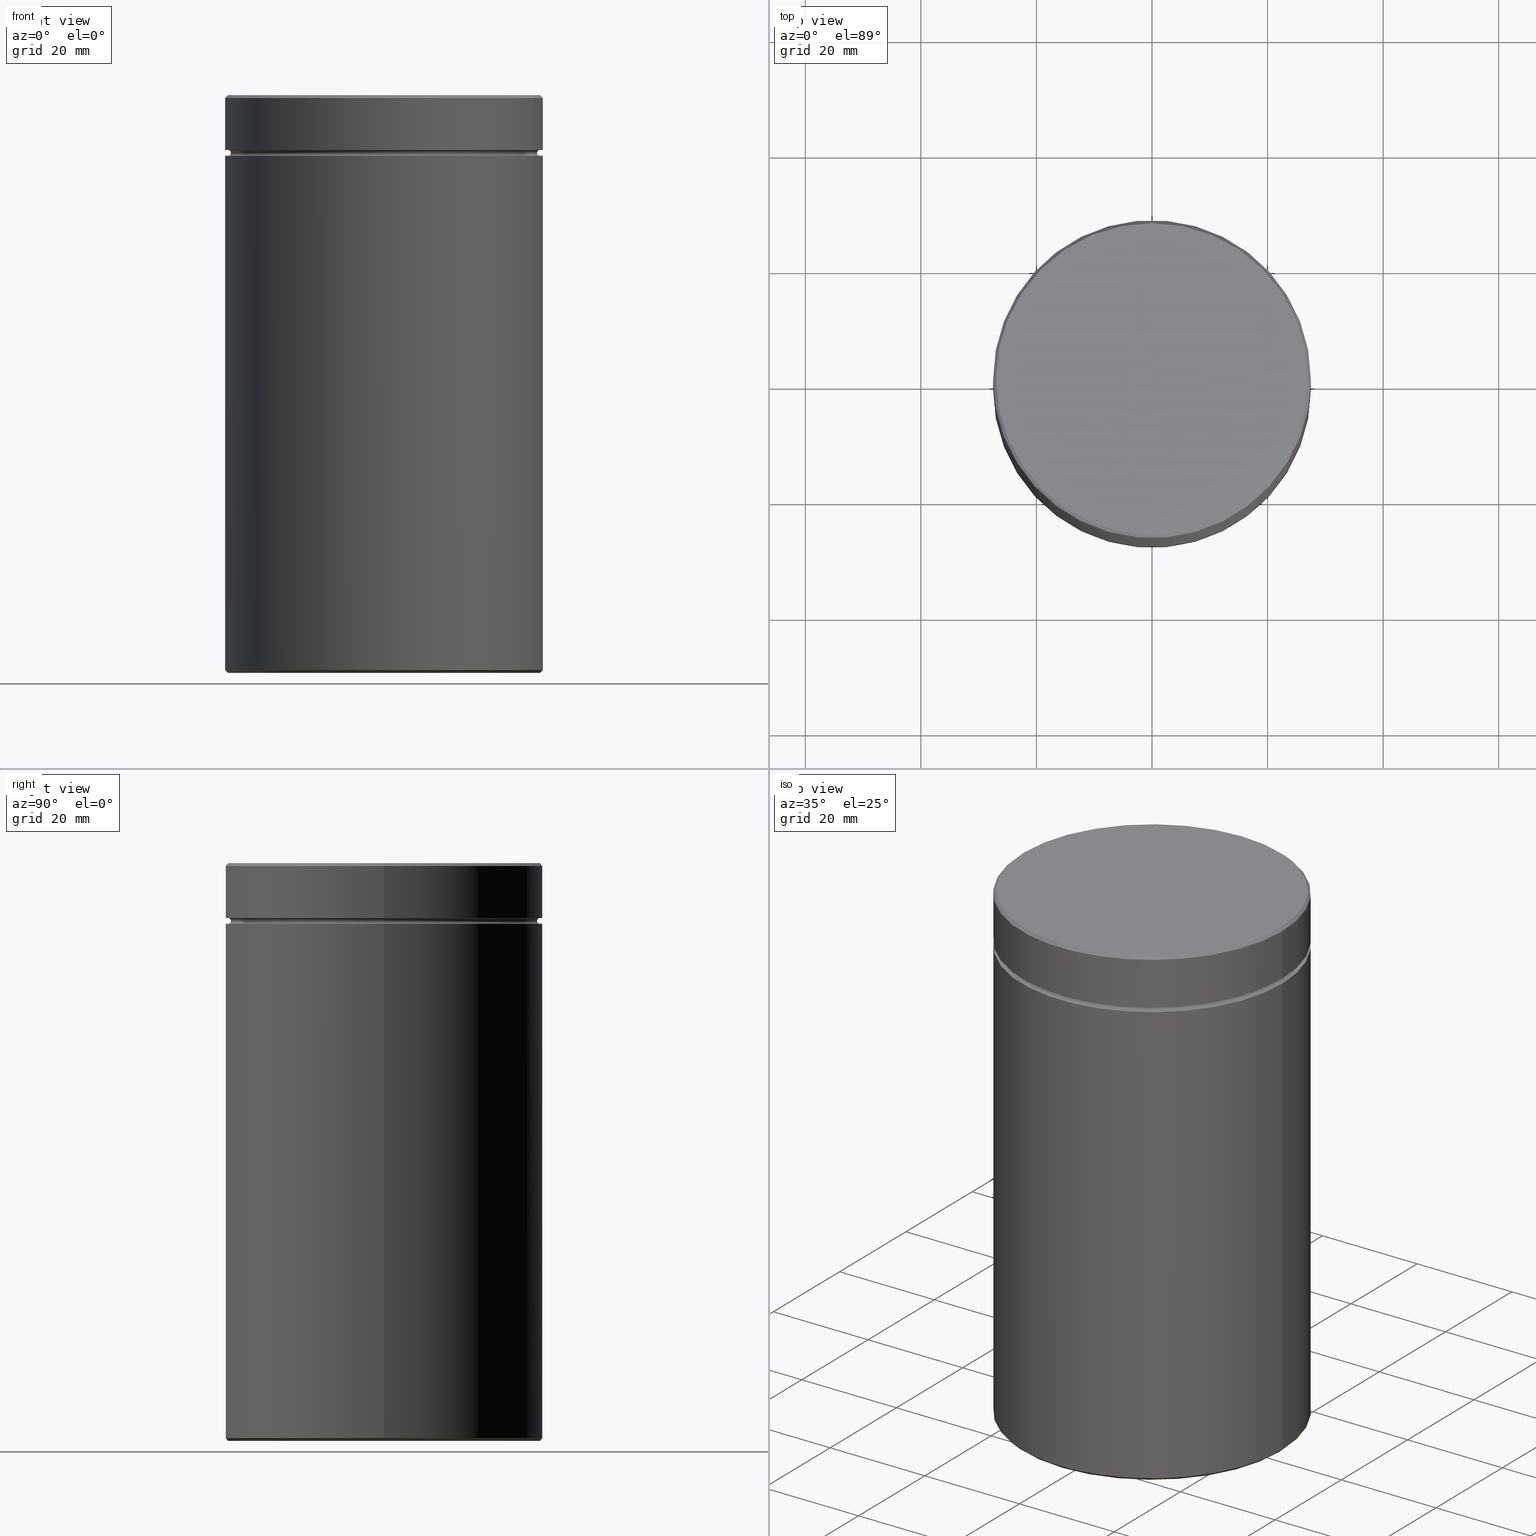
[diagram: canonical four-view strip — front | top / right | iso, engineering-drawing reading convention]
A machine part, canonical four-view strip (front | top / right | iso — engineering-drawing reading convention). The complete STEP part file that produces these views, byte-faithful:
ISO-10303-21;
HEADER;
FILE_DESCRIPTION (( 'STEP AP203' ),
    '1' );
FILE_NAME ('d21d.STEP',
    '2024-01-08T12:14:24',
    ( '' ),
    ( '' ),
    'SwSTEP 2.0',
    'SolidWorks 2019',
    '' );
FILE_SCHEMA (( 'CONFIG_CONTROL_DESIGN' ));
ENDSEC;

DATA;
#1 = DIRECTION ( 'NONE',  ( -1.000000000000000000, 0.000000000000000000, 0.000000000000000000 ) ) ;
#2 = AXIS2_PLACEMENT_3D ( 'NONE', #419, #155, #559 ) ;
#3 = VECTOR ( 'NONE', #146, 1000.000000000000000 ) ;
#4 = CC_DESIGN_DATE_AND_TIME_ASSIGNMENT ( #514, #160, ( #305 ) ) ;
#5 = LINE ( 'NONE', #13, #182 ) ;
#6 = CARTESIAN_POINT ( 'NONE',  ( -20.00000000000000000, 0.000000000000000000, -29.00000000000001066 ) ) ;
#7 = CC_DESIGN_DATE_AND_TIME_ASSIGNMENT ( #473, #37, ( #349 ) ) ;
#8 = DIRECTION ( 'NONE',  ( -0.000000000000000000, -0.000000000000000000, 1.000000000000000000 ) ) ;
#9 = CONICAL_SURFACE ( 'NONE', #327, 26.99999999999997868, 0.7853981633974552734 ) ;
#10 = DIRECTION ( 'NONE',  ( -1.000000000000000000, 0.000000000000000000, 0.000000000000000000 ) ) ;
#11 = DIRECTION ( 'NONE',  ( 0.000000000000000000, 0.000000000000000000, -1.000000000000000000 ) ) ;
#12 = EDGE_CURVE ( 'NONE', #377, #303, #392, .T. ) ;
#13 = CARTESIAN_POINT ( 'NONE',  ( 20.00000000000000000, 2.449293598294706513E-15, -29.00000000000001066 ) ) ;
#14 = ORIENTED_EDGE ( 'NONE', *, *, #314, .T. ) ;
#15 = CARTESIAN_POINT ( 'NONE',  ( -20.00000000000000000, 0.000000000000000000, -100.0000000000000000 ) ) ;
#16 = VERTEX_POINT ( 'NONE', #397 ) ;
#17 = CARTESIAN_POINT ( 'NONE',  ( 27.00000000000000000, 0.000000000000000000, -10.00000000000000178 ) ) ;
#18 = CARTESIAN_POINT ( 'NONE',  ( -26.99999999999996803, 3.337162527676535548E-15, -100.0000000000000000 ) ) ;
#19 = AXIS2_PLACEMENT_3D ( 'NONE', #184, #353, #485 ) ;
#20 = AXIS2_PLACEMENT_3D ( 'NONE', #496, #96, #493 ) ;
#21 = DIRECTION ( 'NONE',  ( 0.000000000000000000, -0.000000000000000000, 1.000000000000000000 ) ) ;
#22 = ADVANCED_FACE ( 'NONE', ( #497, #58 ), #95, .T. ) ;
#23 = APPROVAL_STATUS ( 'not_yet_approved' ) ;
#24 = LINE ( 'NONE', #410, #296 ) ;
#25 = ORIENTED_EDGE ( 'NONE', *, *, #108, .F. ) ;
#26 = FACE_OUTER_BOUND ( 'NONE', #147, .T. ) ;
#27 = CALENDAR_DATE ( 2024, 8, 1 ) ;
#28 = EDGE_LOOP ( 'NONE', ( #124, #298, #87, #523 ) ) ;
#29 = CIRCLE ( 'NONE', #130, 0.5000000000000004441 ) ;
#30 = EDGE_CURVE ( 'NONE', #175, #280, #129, .T. ) ;
#31 = ORIENTED_EDGE ( 'NONE', *, *, #461, .T. ) ;
#32 = SECURITY_CLASSIFICATION_LEVEL ( 'unclassified' ) ;
#33 = ORIENTED_EDGE ( 'NONE', *, *, #135, .F. ) ;
#34 = DIRECTION ( 'NONE',  ( -1.000000000000000000, 0.000000000000000000, -0.000000000000000000 ) ) ;
#35 = TOROIDAL_SURFACE ( 'NONE', #348, 27.00000000000000000, 0.5000000000000000000 ) ;
#36 = CARTESIAN_POINT ( 'NONE',  ( -27.00000000000000000, 3.306546357697854128E-15, -10.50000000000000178 ) ) ;
#37 = DATE_TIME_ROLE ( 'classification_date' ) ;
#38 = VERTEX_POINT ( 'NONE', #535 ) ;
#39 = EDGE_CURVE ( 'NONE', #189, #341, #311, .T. ) ;
#40 = CARTESIAN_POINT ( 'NONE',  ( 0.000000000000000000, 0.000000000000000000, -0.5000000000000143219 ) ) ;
#41 = ORIENTED_EDGE ( 'NONE', *, *, #188, .F. ) ;
#42 = CARTESIAN_POINT ( 'NONE',  ( 0.000000000000000000, 0.000000000000000000, -100.0000000000000000 ) ) ;
#43 = ORIENTED_EDGE ( 'NONE', *, *, #428, .F. ) ;
#44 = ADVANCED_FACE ( 'NONE', ( #491 ), #60, .T. ) ;
#45 = VECTOR ( 'NONE', #378, 1000.000000000000000 ) ;
#46 = ORIENTED_EDGE ( 'NONE', *, *, #152, .T. ) ;
#47 = AXIS2_PLACEMENT_3D ( 'NONE', #185, #450, #181 ) ;
#48 = VERTEX_POINT ( 'NONE', #183 ) ;
#49 = VERTEX_POINT ( 'NONE', #352 ) ;
#50 = ADVANCED_FACE ( 'NONE', ( #539 ), #248, .F. ) ;
#51 = CARTESIAN_POINT ( 'NONE',  ( -27.50000000000000000, 3.367778697655221307E-15, -99.49999999999995737 ) ) ;
#52 = DIRECTION ( 'NONE',  ( 0.000000000000000000, 0.000000000000000000, -1.000000000000000000 ) ) ;
#53 = CIRCLE ( 'NONE', #233, 26.99999999999997868 ) ;
#54 = ORIENTED_EDGE ( 'NONE', *, *, #517, .T. ) ;
#55 = DIRECTION ( 'NONE',  ( 1.000000000000000000, 0.000000000000000000, 0.000000000000000000 ) ) ;
#56 = VECTOR ( 'NONE', #455, 1000.000000000000000 ) ;
#57 = CARTESIAN_POINT ( 'NONE',  ( 0.000000000000000000, 0.000000000000000000, -99.49999999999995737 ) ) ;
#58 = FACE_BOUND ( 'NONE', #167, .T. ) ;
#59 = CARTESIAN_POINT ( 'NONE',  ( 27.50000000000000000, 0.000000000000000000, 0.000000000000000000 ) ) ;
#60 = CONICAL_SURFACE ( 'NONE', #358, 26.99999999999997868, 0.7853981633974552734 ) ;
#61 = DIRECTION ( 'NONE',  ( 1.000000000000000000, 0.000000000000000000, 0.000000000000000000 ) ) ;
#62 = CARTESIAN_POINT ( 'NONE',  ( 0.000000000000000000, 0.000000000000000000, 0.000000000000000000 ) ) ;
#63 = ADVANCED_FACE ( 'NONE', ( #364 ), #196, .F. ) ;
#64 = CARTESIAN_POINT ( 'NONE',  ( 0.000000000000000000, 0.000000000000000000, 0.000000000000000000 ) ) ;
#65 = CIRCLE ( 'NONE', #125, 26.99999999999996803 ) ;
#66 = EDGE_LOOP ( 'NONE', ( #405, #133 ) ) ;
#67 = VECTOR ( 'NONE', #8, 1000.000000000000000 ) ;
#68 = FACE_OUTER_BOUND ( 'NONE', #157, .T. ) ;
#69 = CARTESIAN_POINT ( 'NONE',  ( 0.000000000000000000, 0.000000000000000000, -29.00000000000001066 ) ) ;
#70 = AXIS2_PLACEMENT_3D ( 'NONE', #505, #374, #502 ) ;
#71 = ADVANCED_FACE ( 'NONE', ( #278 ), #234, .F. ) ;
#72 = DIRECTION ( 'NONE',  ( -0.000000000000000000, -0.000000000000000000, 1.000000000000000000 ) ) ;
#73 = APPROVAL_DATE_TIME ( #247, #494 ) ;
#74 = EDGE_LOOP ( 'NONE', ( #334, #470, #414, #114 ) ) ;
#75 = PERSON_AND_ORGANIZATION_ROLE ( 'creator' ) ;
#76 = CARTESIAN_POINT ( 'NONE',  ( 0.000000000000000000, 0.000000000000000000, -9.500000000000000000 ) ) ;
#77 = CALENDAR_DATE ( 2024, 8, 1 ) ;
#78 = CARTESIAN_POINT ( 'NONE',  ( -27.00000000000000000, 0.000000000000000000, -9.499999999999998224 ) ) ;
#79 = ADVANCED_FACE ( 'NONE', ( #370, #287 ), #557, .T. ) ;
#80 = PERSON_AND_ORGANIZATION ( #151, #82 ) ;
#81 = ORIENTED_EDGE ( 'NONE', *, *, #118, .T. ) ;
#82 = ORGANIZATION ( 'NEUR�EN�', 'NEUR�EN�', '' ) ;
#83 = CARTESIAN_POINT ( 'NONE',  ( 0.000000000000000000, 0.000000000000000000, -10.00000000000000178 ) ) ;
#84 = LOCAL_TIME ( 13, 14, 24.00000000000000000, #421 ) ;
#85 = EDGE_LOOP ( 'NONE', ( #236, #515, #546, #117 ) ) ;
#86 = DIRECTION ( 'NONE',  ( -0.000000000000000000, -0.000000000000000000, 1.000000000000000000 ) ) ;
#87 = ORIENTED_EDGE ( 'NONE', *, *, #336, .T. ) ;
#88 = EDGE_CURVE ( 'NONE', #38, #377, #123, .T. ) ;
#89 = EDGE_LOOP ( 'NONE', ( #218, #503 ) ) ;
#90 = CARTESIAN_POINT ( 'NONE',  ( 27.50000000000000000, 0.000000000000000000, -99.49999999999995737 ) ) ;
#91 = DIRECTION ( 'NONE',  ( 1.000000000000000000, 0.000000000000000000, 0.000000000000000000 ) ) ;
#92 = CARTESIAN_POINT ( 'NONE',  ( 0.000000000000000000, 0.000000000000000000, 0.000000000000000000 ) ) ;
#93 = DIRECTION ( 'NONE',  ( -0.000000000000000000, -0.000000000000000000, 1.000000000000000000 ) ) ;
#94 = DIRECTION ( 'NONE',  ( -0.000000000000000000, -0.000000000000000000, 1.000000000000000000 ) ) ;
#95 = PLANE ( 'NONE',  #266 ) ;
#96 = DIRECTION ( 'NONE',  ( -0.000000000000000000, -0.000000000000000000, 1.000000000000000000 ) ) ;
#97 = TOROIDAL_SURFACE ( 'NONE', #332, 27.00000000000000000, 0.5000000000000000000 ) ;
#98 = FACE_BOUND ( 'NONE', #89, .T. ) ;
#99 = ORIENTED_EDGE ( 'NONE', *, *, #418, .T. ) ;
#100 = CC_DESIGN_PERSON_AND_ORGANIZATION_ASSIGNMENT ( #80, #75, ( #305 ) ) ;
#101 = CYLINDRICAL_SURFACE ( 'NONE', #309, 27.50000000000000000 ) ;
#102 = DIRECTION ( 'NONE',  ( -0.000000000000000000, -0.000000000000000000, -1.000000000000000000 ) ) ;
#103 = PERSON_AND_ORGANIZATION ( #151, #82 ) ;
#104 = EDGE_LOOP ( 'NONE', ( #474, #14 ) ) ;
#105 = DIRECTION ( 'NONE',  ( -0.000000000000000000, -0.000000000000000000, 1.000000000000000000 ) ) ;
#106 = AXIS2_PLACEMENT_3D ( 'NONE', #265, #563, #335 ) ;
#107 = DIRECTION ( 'NONE',  ( 0.000000000000000000, 0.000000000000000000, -1.000000000000000000 ) ) ;
#108 = EDGE_CURVE ( 'NONE', #16, #280, #24, .T. ) ;
#109 = CARTESIAN_POINT ( 'NONE',  ( 27.50000000000000000, 0.000000000000000000, 0.000000000000000000 ) ) ;
#110 = ORIENTED_EDGE ( 'NONE', *, *, #471, .F. ) ;
#111 = CARTESIAN_POINT ( 'NONE',  ( 20.00000000000000000, 2.449293598294706513E-15, -100.0000000000000000 ) ) ;
#112 = CARTESIAN_POINT ( 'NONE',  ( 0.000000000000000000, 0.000000000000000000, -99.49999999999995737 ) ) ;
#113 = COORDINATED_UNIVERSAL_TIME_OFFSET ( 1, 0, .AHEAD. ) ;
#114 = ORIENTED_EDGE ( 'NONE', *, *, #244, .F. ) ;
#115 = PERSON_AND_ORGANIZATION_ROLE ( 'classification_officer' ) ;
#116 = LOCAL_TIME ( 13, 14, 24.00000000000000000, #252 ) ;
#117 = ORIENTED_EDGE ( 'NONE', *, *, #12, .F. ) ;
#118 = EDGE_CURVE ( 'NONE', #377, #38, #344, .T. ) ;
#119 = DIRECTION ( 'NONE',  ( -0.000000000000000000, -0.000000000000000000, 1.000000000000000000 ) ) ;
#120 = PERSON_AND_ORGANIZATION_ROLE ( 'creator' ) ;
#121 = ORIENTED_EDGE ( 'NONE', *, *, #269, .T. ) ;
#122 = DIRECTION ( 'NONE',  ( -0.000000000000000000, -0.000000000000000000, 1.000000000000000000 ) ) ;
#123 = CIRCLE ( 'NONE', #277, 20.00000000000000000 ) ;
#124 = ORIENTED_EDGE ( 'NONE', *, *, #517, .F. ) ;
#125 = AXIS2_PLACEMENT_3D ( 'NONE', #398, #11, #480 ) ;
#126 = DIRECTION ( 'NONE',  ( -0.000000000000000000, -0.000000000000000000, 1.000000000000000000 ) ) ;
#127 = ADVANCED_FACE ( 'NONE', ( #464 ), #324, .T. ) ;
#128 = EDGE_LOOP ( 'NONE', ( #286, #483, #319, #140 ) ) ;
#129 = LINE ( 'NONE', #487, #304 ) ;
#130 = AXIS2_PLACEMENT_3D ( 'NONE', #297, #255, #386 ) ;
#131 = CARTESIAN_POINT ( 'NONE',  ( 0.000000000000000000, 0.000000000000000000, -10.50000000000000000 ) ) ;
#132 = CC_DESIGN_SECURITY_CLASSIFICATION ( #349, ( #192 ) ) ;
#133 = ORIENTED_EDGE ( 'NONE', *, *, #342, .T. ) ;
#134 = DIRECTION ( 'NONE',  ( 1.000000000000000000, 0.000000000000000000, 0.000000000000000000 ) ) ;
#135 = EDGE_CURVE ( 'NONE', #360, #259, #401, .T. ) ;
#136 = CARTESIAN_POINT ( 'NONE',  ( 0.000000000000000000, 0.000000000000000000, -100.0000000000000000 ) ) ;
#137 = DIRECTION ( 'NONE',  ( -0.000000000000000000, -0.000000000000000000, 1.000000000000000000 ) ) ;
#138 = DIRECTION ( 'NONE',  ( 0.000000000000000000, 0.000000000000000000, -1.000000000000000000 ) ) ;
#139 = DIRECTION ( 'NONE',  ( -0.000000000000000000, -0.000000000000000000, 1.000000000000000000 ) ) ;
#140 = ORIENTED_EDGE ( 'NONE', *, *, #471, .T. ) ;
#141 = FACE_OUTER_BOUND ( 'NONE', #288, .T. ) ;
#142 = PLANE ( 'NONE',  #284 ) ;
#143 = CONICAL_SURFACE ( 'NONE', #19, 27.50000000000000000, 0.7853981633974378429 ) ;
#144 = ORIENTED_EDGE ( 'NONE', *, *, #489, .T. ) ;
#145 = ADVANCED_FACE ( 'NONE', ( #68 ), #456, .T. ) ;
#146 = DIRECTION ( 'NONE',  ( -0.000000000000000000, -0.000000000000000000, 1.000000000000000000 ) ) ;
#147 = EDGE_LOOP ( 'NONE', ( #150, #317, #198, #558 ) ) ;
#148 = DIRECTION ( 'NONE',  ( -1.000000000000000000, 0.000000000000000000, 0.000000000000000000 ) ) ;
#149 = CARTESIAN_POINT ( 'NONE',  ( 0.000000000000000000, 0.000000000000000000, 0.000000000000000000 ) ) ;
#150 = ORIENTED_EDGE ( 'NONE', *, *, #366, .F. ) ;
#151 = PERSON ( 'NEUR�EN�', 'NEUR�EN�', 'NEUR�EN�', ('NEUR�EN�'), ('NEUR�EN�'), ('NEUR�EN�') ) ;
#152 = EDGE_CURVE ( 'NONE', #341, #262, #549, .T. ) ;
#153 = VERTEX_POINT ( 'NONE', #18 ) ;
#154 = CIRCLE ( 'NONE', #211, 27.50000000000000000 ) ;
#155 = DIRECTION ( 'NONE',  ( -0.000000000000000000, -1.000000000000000000, -0.000000000000000000 ) ) ;
#156 = CARTESIAN_POINT ( 'NONE',  ( 0.000000000000000000, 0.000000000000000000, 0.000000000000000000 ) ) ;
#157 = EDGE_LOOP ( 'NONE', ( #46, #31, #43, #264 ) ) ;
#158 = PRODUCT_DEFINITION_SHAPE ( 'NONE', 'NONE',  #305 ) ;
#159 = EDGE_LOOP ( 'NONE', ( #387, #556, #435, #268 ) ) ;
#160 = DATE_TIME_ROLE ( 'creation_date' ) ;
#161 = VERTEX_POINT ( 'NONE', #555 ) ;
#162 = EDGE_CURVE ( 'NONE', #201, #161, #193, .T. ) ;
#163 = AXIS2_PLACEMENT_3D ( 'NONE', #76, #245, #427 ) ;
#164 = CARTESIAN_POINT ( 'NONE',  ( -20.00000000000000000, 0.000000000000000000, -29.00000000000001066 ) ) ;
#165 = VERTEX_POINT ( 'NONE', #321 ) ;
#166 = CARTESIAN_POINT ( 'NONE',  ( 0.000000000000000000, 0.000000000000000000, -10.50000000000000178 ) ) ;
#167 = EDGE_LOOP ( 'NONE', ( #110, #41 ) ) ;
#168 = CARTESIAN_POINT ( 'NONE',  ( 0.000000000000000000, 0.000000000000000000, -9.499999999999998224 ) ) ;
#169 = ADVANCED_FACE ( 'NONE', ( #26 ), #460, .T. ) ;
#170 = ORIENTED_EDGE ( 'NONE', *, *, #482, .T. ) ;
#171 = AXIS2_PLACEMENT_3D ( 'NONE', #448, #499, #367 ) ;
#172 = DIRECTION ( 'NONE',  ( 1.000000000000000000, 0.000000000000000000, 0.000000000000000000 ) ) ;
#173 = AXIS2_PLACEMENT_3D ( 'NONE', #112, #551, #290 ) ;
#174 = PRODUCT_RELATED_PRODUCT_CATEGORY ( 'detail', '', ( #246 ) ) ;
#175 = VERTEX_POINT ( 'NONE', #351 ) ;
#176 = DIRECTION ( 'NONE',  ( 0.000000000000000000, 0.000000000000000000, -1.000000000000000000 ) ) ;
#177 = CARTESIAN_POINT ( 'NONE',  ( 26.99999999999997868, 3.306546357697850972E-15, 0.000000000000000000 ) ) ;
#178 = CARTESIAN_POINT ( 'NONE',  ( 0.000000000000000000, 27.50000000000000000, -100.0000000000000000 ) ) ;
#179 = ADVANCED_FACE ( 'NONE', ( #230 ), #484, .F. ) ;
#180 = AXIS2_PLACEMENT_3D ( 'NONE', #526, #86, #536 ) ;
#181 = DIRECTION ( 'NONE',  ( 1.000000000000000000, 0.000000000000000000, 0.000000000000000000 ) ) ;
#182 = VECTOR ( 'NONE', #345, 1000.000000000000000 ) ;
#183 = CARTESIAN_POINT ( 'NONE',  ( 27.00000000000000000, 0.000000000000000000, -10.50000000000000178 ) ) ;
#184 = CARTESIAN_POINT ( 'NONE',  ( 0.000000000000000000, 0.000000000000000000, -99.49999999999995737 ) ) ;
#185 = CARTESIAN_POINT ( 'NONE',  ( 0.000000000000000000, 0.000000000000000000, -99.49999999999995737 ) ) ;
#186 = ORIENTED_EDGE ( 'NONE', *, *, #88, .T. ) ;
#187 = DIRECTION ( 'NONE',  ( 1.000000000000000000, 0.000000000000000000, 0.000000000000000000 ) ) ;
#188 = EDGE_CURVE ( 'NONE', #338, #303, #194, .T. ) ;
#189 = VERTEX_POINT ( 'NONE', #273 ) ;
#190 = DIRECTION ( 'NONE',  ( 0.000000000000000000, 0.000000000000000000, -1.000000000000000000 ) ) ;
#191 = FACE_OUTER_BOUND ( 'NONE', #159, .T. ) ;
#192 = PRODUCT_DEFINITION_FORMATION_WITH_SPECIFIED_SOURCE ( 'LIBOVOLN�', '', #246, .NOT_KNOWN. ) ;
#193 = LINE ( 'NONE', #109, #3 ) ;
#194 = CIRCLE ( 'NONE', #519, 20.00000000000000000 ) ;
#195 = CIRCLE ( 'NONE', #423, 27.50000000000000000 ) ;
#196 = CYLINDRICAL_SURFACE ( 'NONE', #525, 20.00000000000000000 ) ;
#197 = PERSON_AND_ORGANIZATION ( #151, #82 ) ;
#198 = ORIENTED_EDGE ( 'NONE', *, *, #152, .F. ) ;
#199 = AXIS2_PLACEMENT_3D ( 'NONE', #69, #412, #328 ) ;
#200 = DIRECTION ( 'NONE',  ( -1.000000000000000000, 0.000000000000000000, 0.000000000000000000 ) ) ;
#201 = VERTEX_POINT ( 'NONE', #313 ) ;
#202 = CIRCLE ( 'NONE', #106, 27.50000000000000000 ) ;
#203 = DATE_AND_TIME ( #27, #481 ) ;
#204 = ORIENTED_EDGE ( 'NONE', *, *, #554, .T. ) ;
#205 = PERSON_AND_ORGANIZATION ( #151, #82 ) ;
#206 = ORIENTED_EDGE ( 'NONE', *, *, #30, .F. ) ;
#207 = APPROVAL ( #23, 'NEUR�EN�' ) ;
#208 = DIRECTION ( 'NONE',  ( 1.000000000000000000, 0.000000000000000000, 0.000000000000000000 ) ) ;
#209 = APPROVAL_STATUS ( 'not_yet_approved' ) ;
#210 = CIRCLE ( 'NONE', #373, 27.00000000000000000 ) ;
#211 = AXIS2_PLACEMENT_3D ( 'NONE', #57, #94, #407 ) ;
#212 = DIRECTION ( 'NONE',  ( 1.000000000000000000, 0.000000000000000000, 0.000000000000000000 ) ) ;
#213 = EDGE_CURVE ( 'NONE', #16, #49, #260, .T. ) ;
#214 = CARTESIAN_POINT ( 'NONE',  ( 0.000000000000000000, 0.000000000000000000, 0.000000000000000000 ) ) ;
#215 = DESIGN_CONTEXT ( 'detailed design', #229, 'design' ) ;
#216 = DIRECTION ( 'NONE',  ( 0.000000000000000000, 0.000000000000000000, -1.000000000000000000 ) ) ;
#217 = AXIS2_PLACEMENT_3D ( 'NONE', #569, #325, #55 ) ;
#218 = ORIENTED_EDGE ( 'NONE', *, *, #135, .T. ) ;
#219 = ADVANCED_FACE ( 'NONE', ( #191 ), #101, .T. ) ;
#220 = DIRECTION ( 'NONE',  ( 0.7071067811865401342, 0.000000000000000000, 0.7071067811865549002 ) ) ;
#221 = DIRECTION ( 'NONE',  ( 0.000000000000000000, 0.000000000000000000, -1.000000000000000000 ) ) ;
#222 = CARTESIAN_POINT ( 'NONE',  ( 0.000000000000000000, 0.000000000000000000, -0.5000000000000143219 ) ) ;
#223 = AXIS2_PLACEMENT_3D ( 'NONE', #149, #544, #232 ) ;
#224 = FACE_OUTER_BOUND ( 'NONE', #28, .T. ) ;
#225 = AXIS2_PLACEMENT_3D ( 'NONE', #17, #545, #541 ) ;
#226 = ORIENTED_EDGE ( 'NONE', *, *, #213, .F. ) ;
#227 = EDGE_CURVE ( 'NONE', #38, #338, #5, .T. ) ;
#228 = VERTEX_POINT ( 'NONE', #452 ) ;
#229 = APPLICATION_CONTEXT ( 'configuration controlled 3d designs of mechanical parts and assemblies' ) ;
#230 = FACE_OUTER_BOUND ( 'NONE', #369, .T. ) ;
#231 = CARTESIAN_POINT ( 'NONE',  ( 0.000000000000000000, 0.000000000000000000, -29.00000000000001066 ) ) ;
#232 = DIRECTION ( 'NONE',  ( 1.000000000000000000, 0.000000000000000000, 0.000000000000000000 ) ) ;
#233 = AXIS2_PLACEMENT_3D ( 'NONE', #522, #93, #208 ) ;
#234 = CYLINDRICAL_SURFACE ( 'NONE', #199, 20.00000000000000000 ) ;
#235 = CARTESIAN_POINT ( 'NONE',  ( 0.000000000000000000, 0.000000000000000000, 0.000000000000000000 ) ) ;
#236 = ORIENTED_EDGE ( 'NONE', *, *, #88, .F. ) ;
#237 = CARTESIAN_POINT ( 'NONE',  ( 0.000000000000000000, 0.000000000000000000, -29.00000000000001066 ) ) ;
#238 = EDGE_CURVE ( 'NONE', #341, #506, #490, .T. ) ;
#239 = DIRECTION ( 'NONE',  ( 1.000000000000000000, 0.000000000000000000, 0.000000000000000000 ) ) ;
#240 = DIRECTION ( 'NONE',  ( 0.000000000000000000, 0.000000000000000000, -1.000000000000000000 ) ) ;
#241 = PERSON_AND_ORGANIZATION ( #151, #82 ) ;
#242 = AXIS2_PLACEMENT_3D ( 'NONE', #131, #310, #91 ) ;
#243 = ORIENTED_EDGE ( 'NONE', *, *, #531, .F. ) ;
#244 = EDGE_CURVE ( 'NONE', #262, #341, #154, .T. ) ;
#245 = DIRECTION ( 'NONE',  ( -0.000000000000000000, -0.000000000000000000, 1.000000000000000000 ) ) ;
#246 = PRODUCT ( 'd21d', 'd21d', '', ( #357 ) ) ;
#247 = DATE_AND_TIME ( #77, #84 ) ;
#248 = TOROIDAL_SURFACE ( 'NONE', #70, 27.00000000000000000, 0.5000000000000000000 ) ;
#249 = AXIS2_PLACEMENT_3D ( 'NONE', #237, #510, #552 ) ;
#250 = CARTESIAN_POINT ( 'NONE',  ( 27.50000000000000000, 0.000000000000000000, -10.50000000000000000 ) ) ;
#251 = EDGE_CURVE ( 'NONE', #165, #48, #537, .T. ) ;
#252 = COORDINATED_UNIVERSAL_TIME_OFFSET ( 1, 0, .AHEAD. ) ;
#253 = VERTEX_POINT ( 'NONE', #443 ) ;
#254 = CIRCLE ( 'NONE', #163, 27.50000000000000000 ) ;
#255 = DIRECTION ( 'NONE',  ( -1.224646799147353207E-16, 1.000000000000000000, 0.000000000000000000 ) ) ;
#256 = ORIENTED_EDGE ( 'NONE', *, *, #389, .F. ) ;
#257 = DIRECTION ( 'NONE',  ( 0.000000000000000000, 0.000000000000000000, -1.000000000000000000 ) ) ;
#258 = ORIENTED_EDGE ( 'NONE', *, *, #399, .F. ) ;
#259 = VERTEX_POINT ( 'NONE', #267 ) ;
#260 = CIRCLE ( 'NONE', #20, 26.99999999999997868 ) ;
#261 = ADVANCED_FACE ( 'NONE', ( #98, #362 ), #142, .T. ) ;
#262 = VERTEX_POINT ( 'NONE', #446 ) ;
#263 = FACE_OUTER_BOUND ( 'NONE', #66, .T. ) ;
#264 = ORIENTED_EDGE ( 'NONE', *, *, #238, .F. ) ;
#265 = CARTESIAN_POINT ( 'NONE',  ( 0.000000000000000000, 0.000000000000000000, -9.500000000000000000 ) ) ;
#266 = AXIS2_PLACEMENT_3D ( 'NONE', #178, #176, #543 ) ;
#267 = CARTESIAN_POINT ( 'NONE',  ( 27.00000000000000000, 3.306546357697854128E-15, -9.499999999999998224 ) ) ;
#268 = ORIENTED_EDGE ( 'NONE', *, *, #314, .F. ) ;
#269 = EDGE_CURVE ( 'NONE', #381, #48, #508, .T. ) ;
#270 = AXIS2_PLACEMENT_3D ( 'NONE', #42, #524, #347 ) ;
#271 = PLANE ( 'NONE',  #431 ) ;
#272 = APPROVAL_PERSON_ORGANIZATION ( #241, #494, #333 ) ;
#273 = CARTESIAN_POINT ( 'NONE',  ( 26.99999999999996803, 0.000000000000000000, -100.0000000000000000 ) ) ;
#274 = ORIENTED_EDGE ( 'NONE', *, *, #389, .T. ) ;
#275 = DIRECTION ( 'NONE',  ( -1.000000000000000000, 0.000000000000000000, 0.000000000000000000 ) ) ;
#276 = DIRECTION ( 'NONE',  ( -1.000000000000000000, 0.000000000000000000, -0.000000000000000000 ) ) ;
#277 = AXIS2_PLACEMENT_3D ( 'NONE', #283, #240, #148 ) ;
#278 = FACE_OUTER_BOUND ( 'NONE', #85, .T. ) ;
#279 = PERSON_AND_ORGANIZATION_ROLE ( 'design_owner' ) ;
#280 = VERTEX_POINT ( 'NONE', #359 ) ;
#281 = EDGE_CURVE ( 'NONE', #49, #161, #396, .T. ) ;
#282 = APPROVAL_PERSON_ORGANIZATION ( #197, #207, #553 ) ;
#283 = CARTESIAN_POINT ( 'NONE',  ( 0.000000000000000000, 0.000000000000000000, -29.00000000000001066 ) ) ;
#284 = AXIS2_PLACEMENT_3D ( 'NONE', #500, #320, #276 ) ;
#285 = FACE_OUTER_BOUND ( 'NONE', #438, .T. ) ;
#286 = ORIENTED_EDGE ( 'NONE', *, *, #227, .F. ) ;
#287 = FACE_OUTER_BOUND ( 'NONE', #104, .T. ) ;
#288 = EDGE_LOOP ( 'NONE', ( #99, #54, #33, #468 ) ) ;
#289 = VECTOR ( 'NONE', #220, 1000.000000000000000 ) ;
#290 = DIRECTION ( 'NONE',  ( -1.000000000000000000, 0.000000000000000000, 0.000000000000000000 ) ) ;
#291 = APPROVAL_STATUS ( 'not_yet_approved' ) ;
#292 = CARTESIAN_POINT ( 'NONE',  ( 27.50000000000000000, 0.000000000000000000, -99.49999999999995737 ) ) ;
#293 = AXIS2_PLACEMENT_3D ( 'NONE', #64, #420, #513 ) ;
#294 = DIRECTION ( 'NONE',  ( 1.000000000000000000, 0.000000000000000000, 0.000000000000000000 ) ) ;
#295 = ORIENTED_EDGE ( 'NONE', *, *, #342, .F. ) ;
#296 = VECTOR ( 'NONE', #462, 1000.000000000000000 ) ;
#297 = CARTESIAN_POINT ( 'NONE',  ( 27.00000000000000000, 3.306546357697853733E-15, -9.999999999999998224 ) ) ;
#298 = ORIENTED_EDGE ( 'NONE', *, *, #531, .T. ) ;
#299 = CIRCLE ( 'NONE', #562, 27.50000000000000000 ) ;
#300 = AXIS2_PLACEMENT_3D ( 'NONE', #532, #550, #501 ) ;
#301 = PLANE ( 'NONE',  #441 ) ;
#302 = ORIENTED_EDGE ( 'NONE', *, *, #269, .F. ) ;
#303 = VERTEX_POINT ( 'NONE', #15 ) ;
#304 = VECTOR ( 'NONE', #137, 1000.000000000000000 ) ;
#305 = PRODUCT_DEFINITION ( 'NEZN�M�', '', #192, #215 ) ;
#306 = EDGE_LOOP ( 'NONE', ( #295, #495, #256, #25 ) ) ;
#307 = CIRCLE ( 'NONE', #400, 26.50000000000000000 ) ;
#308 = CC_DESIGN_PERSON_AND_ORGANIZATION_ASSIGNMENT ( #467, #120, ( #192 ) ) ;
#309 = AXIS2_PLACEMENT_3D ( 'NONE', #62, #139, #187 ) ;
#310 = DIRECTION ( 'NONE',  ( -0.000000000000000000, -0.000000000000000000, 1.000000000000000000 ) ) ;
#311 = LINE ( 'NONE', #90, #289 ) ;
#312 = FACE_OUTER_BOUND ( 'NONE', #479, .T. ) ;
#313 = CARTESIAN_POINT ( 'NONE',  ( 27.50000000000000000, 0.000000000000000000, -9.500000000000000000 ) ) ;
#314 = EDGE_CURVE ( 'NONE', #228, #506, #375, .T. ) ;
#315 = DIRECTION ( 'NONE',  ( 1.000000000000000000, 0.000000000000000000, 0.000000000000000000 ) ) ;
#316 = DIRECTION ( 'NONE',  ( -1.000000000000000000, 0.000000000000000000, 0.000000000000000000 ) ) ;
#317 = ORIENTED_EDGE ( 'NONE', *, *, #372, .T. ) ;
#318 = CIRCLE ( 'NONE', #180, 27.50000000000000000 ) ;
#319 = ORIENTED_EDGE ( 'NONE', *, *, #12, .T. ) ;
#320 = DIRECTION ( 'NONE',  ( 0.000000000000000000, 0.000000000000000000, -1.000000000000000000 ) ) ;
#321 = CARTESIAN_POINT ( 'NONE',  ( 26.50000000000000000, 0.000000000000000000, -10.00000000000000178 ) ) ;
#322 = ORIENTED_EDGE ( 'NONE', *, *, #108, .T. ) ;
#323 = ADVANCED_FACE ( 'NONE', ( #224 ), #35, .F. ) ;
#324 = CYLINDRICAL_SURFACE ( 'NONE', #488, 27.50000000000000000 ) ;
#325 = DIRECTION ( 'NONE',  ( -0.000000000000000000, -0.000000000000000000, 1.000000000000000000 ) ) ;
#326 = ORIENTED_EDGE ( 'NONE', *, *, #382, .F. ) ;
#327 = AXIS2_PLACEMENT_3D ( 'NONE', #235, #190, #275 ) ;
#328 = DIRECTION ( 'NONE',  ( -1.000000000000000000, 0.000000000000000000, 0.000000000000000000 ) ) ;
#329 = ADVANCED_FACE ( 'NONE', ( #263 ), #271, .T. ) ;
#330 = CARTESIAN_POINT ( 'NONE',  ( 0.000000000000000000, 0.000000000000000000, -9.499999999999998224 ) ) ;
#331 = ORIENTED_EDGE ( 'NONE', *, *, #251, .T. ) ;
#332 = AXIS2_PLACEMENT_3D ( 'NONE', #368, #107, #406 ) ;
#333 = APPROVAL_ROLE ( '' ) ;
#334 = ORIENTED_EDGE ( 'NONE', *, *, #372, .F. ) ;
#335 = DIRECTION ( 'NONE',  ( 1.000000000000000000, 0.000000000000000000, 0.000000000000000000 ) ) ;
#336 = EDGE_CURVE ( 'NONE', #253, #360, #449, .T. ) ;
#337 = LINE ( 'NONE', #51, #45 ) ;
#338 = VERTEX_POINT ( 'NONE', #111 ) ;
#339 = DIRECTION ( 'NONE',  ( -0.000000000000000000, -0.000000000000000000, 1.000000000000000000 ) ) ;
#340 = CIRCLE ( 'NONE', #217, 26.50000000000000000 ) ;
#341 = VERTEX_POINT ( 'NONE', #292 ) ;
#342 = EDGE_CURVE ( 'NONE', #49, #16, #53, .T. ) ;
#343 = ORIENTED_EDGE ( 'NONE', *, *, #554, .F. ) ;
#344 = CIRCLE ( 'NONE', #249, 20.00000000000000000 ) ;
#345 = DIRECTION ( 'NONE',  ( -0.000000000000000000, -0.000000000000000000, -1.000000000000000000 ) ) ;
#346 = DIRECTION ( 'NONE',  ( -0.000000000000000000, -0.000000000000000000, -1.000000000000000000 ) ) ;
#347 = DIRECTION ( 'NONE',  ( -1.000000000000000000, 0.000000000000000000, 0.000000000000000000 ) ) ;
#348 = AXIS2_PLACEMENT_3D ( 'NONE', #402, #221, #316 ) ;
#349 = SECURITY_CLASSIFICATION ( '', '', #32 ) ;
#350 = EDGE_CURVE ( 'NONE', #259, #360, #210, .T. ) ;
#351 = CARTESIAN_POINT ( 'NONE',  ( -27.50000000000000000, 3.367778697655221307E-15, -9.500000000000000000 ) ) ;
#352 = CARTESIAN_POINT ( 'NONE',  ( 26.99999999999997868, 3.337162527676536337E-15, 0.000000000000000000 ) ) ;
#353 = DIRECTION ( 'NONE',  ( -0.000000000000000000, -0.000000000000000000, 1.000000000000000000 ) ) ;
#354 = CC_DESIGN_PERSON_AND_ORGANIZATION_ASSIGNMENT ( #511, #424, ( #192 ) ) ;
#355 = DIRECTION ( 'NONE',  ( 1.000000000000000000, 0.000000000000000000, 0.000000000000000000 ) ) ;
#356 = EDGE_LOOP ( 'NONE', ( #425, #326 ) ) ;
#357 = MECHANICAL_CONTEXT ( 'NONE', #409, 'mechanical' ) ;
#358 = AXIS2_PLACEMENT_3D ( 'NONE', #92, #444, #10 ) ;
#359 = CARTESIAN_POINT ( 'NONE',  ( -27.50000000000000000, 3.367778697655221307E-15, -0.5000000000000143219 ) ) ;
#360 = VERTEX_POINT ( 'NONE', #78 ) ;
#361 = CC_DESIGN_APPROVAL ( #207, ( #305 ) ) ;
#362 = FACE_OUTER_BOUND ( 'NONE', #356, .T. ) ;
#363 = AXIS2_PLACEMENT_3D ( 'NONE', #538, #393, #355 ) ;
#364 = FACE_OUTER_BOUND ( 'NONE', #128, .T. ) ;
#365 = MANIFOLD_SOLID_BREP ( 'Zaoblit1', #504 ) ;
#366 = EDGE_CURVE ( 'NONE', #153, #189, #65, .T. ) ;
#367 = DIRECTION ( 'NONE',  ( -1.000000000000000000, 1.224646799147349509E-16, 0.000000000000000000 ) ) ;
#368 = CARTESIAN_POINT ( 'NONE',  ( 0.000000000000000000, 0.000000000000000000, -9.999999999999998224 ) ) ;
#369 = EDGE_LOOP ( 'NONE', ( #465, #204, #512, #391 ) ) ;
#370 = FACE_BOUND ( 'NONE', #565, .T. ) ;
#371 =( NAMED_UNIT ( * ) PLANE_ANGLE_UNIT ( ) SI_UNIT ( $, .RADIAN. ) );
#372 = EDGE_CURVE ( 'NONE', #153, #262, #337, .T. ) ;
#373 = AXIS2_PLACEMENT_3D ( 'NONE', #168, #339, #383 ) ;
#374 = DIRECTION ( 'NONE',  ( -0.000000000000000000, -0.000000000000000000, 1.000000000000000000 ) ) ;
#375 = CIRCLE ( 'NONE', #242, 27.50000000000000000 ) ;
#376 = SHAPE_DEFINITION_REPRESENTATION ( #158, #384 ) ;
#377 = VERTEX_POINT ( 'NONE', #164 ) ;
#378 = DIRECTION ( 'NONE',  ( -0.7071067811865401342, 8.659560562354842879E-17, 0.7071067811865549002 ) ) ;
#379 = CIRCLE ( 'NONE', #527, 20.00000000000000000 ) ;
#380 = PERSON_AND_ORGANIZATION ( #151, #82 ) ;
#381 = VERTEX_POINT ( 'NONE', #36 ) ;
#382 = EDGE_CURVE ( 'NONE', #175, #201, #202, .T. ) ;
#383 = DIRECTION ( 'NONE',  ( -1.000000000000000000, 0.000000000000000000, 0.000000000000000000 ) ) ;
#384 = ADVANCED_BREP_SHAPE_REPRESENTATION ( 'd21d', ( #365, #223 ), #518 ) ;
#385 = EDGE_LOOP ( 'NONE', ( #81, #186 ) ) ;
#386 = DIRECTION ( 'NONE',  ( -1.000000000000000000, -1.224646799147349509E-16, 0.000000000000000000 ) ) ;
#387 = ORIENTED_EDGE ( 'NONE', *, *, #461, .F. ) ;
#388 = CYLINDRICAL_SURFACE ( 'NONE', #390, 27.50000000000000000 ) ;
#389 = EDGE_CURVE ( 'NONE', #280, #161, #299, .T. ) ;
#390 = AXIS2_PLACEMENT_3D ( 'NONE', #214, #122, #134 ) ;
#391 = ORIENTED_EDGE ( 'NONE', *, *, #251, .F. ) ;
#392 = LINE ( 'NONE', #6, #395 ) ;
#393 = DIRECTION ( 'NONE',  ( -0.000000000000000000, -0.000000000000000000, 1.000000000000000000 ) ) ;
#394 = ORIENTED_EDGE ( 'NONE', *, *, #281, .F. ) ;
#395 = VECTOR ( 'NONE', #346, 1000.000000000000000 ) ;
#396 = LINE ( 'NONE', #177, #56 ) ;
#397 = CARTESIAN_POINT ( 'NONE',  ( -26.99999999999997868, 0.000000000000000000, 0.000000000000000000 ) ) ;
#398 = CARTESIAN_POINT ( 'NONE',  ( 0.000000000000000000, 0.000000000000000000, -100.0000000000000000 ) ) ;
#399 = EDGE_CURVE ( 'NONE', #161, #280, #195, .T. ) ;
#400 = AXIS2_PLACEMENT_3D ( 'NONE', #83, #119, #294 ) ;
#401 = CIRCLE ( 'NONE', #440, 27.00000000000000000 ) ;
#402 = CARTESIAN_POINT ( 'NONE',  ( 0.000000000000000000, 0.000000000000000000, -9.999999999999998224 ) ) ;
#403 =( NAMED_UNIT ( * ) SI_UNIT ( $, .STERADIAN. ) SOLID_ANGLE_UNIT ( ) );
#404 = DIRECTION ( 'NONE',  ( -1.000000000000000000, 0.000000000000000000, 0.000000000000000000 ) ) ;
#405 = ORIENTED_EDGE ( 'NONE', *, *, #213, .T. ) ;
#406 = DIRECTION ( 'NONE',  ( -1.000000000000000000, 0.000000000000000000, 0.000000000000000000 ) ) ;
#407 = DIRECTION ( 'NONE',  ( -1.000000000000000000, 0.000000000000000000, 0.000000000000000000 ) ) ;
#408 = CC_DESIGN_PERSON_AND_ORGANIZATION_ASSIGNMENT ( #103, #279, ( #246 ) ) ;
#409 = APPLICATION_CONTEXT ( 'configuration controlled 3d designs of mechanical parts and assemblies' ) ;
#410 = CARTESIAN_POINT ( 'NONE',  ( -26.99999999999997868, 0.000000000000000000, 0.000000000000000000 ) ) ;
#411 = LOCAL_TIME ( 13, 14, 24.00000000000000000, #478 ) ;
#412 = DIRECTION ( 'NONE',  ( -0.000000000000000000, -0.000000000000000000, -1.000000000000000000 ) ) ;
#413 = APPLICATION_PROTOCOL_DEFINITION ( 'international standard', 'config_control_design', 1994, #409 ) ;
#414 = ORIENTED_EDGE ( 'NONE', *, *, #39, .T. ) ;
#415 = DIRECTION ( 'NONE',  ( 0.000000000000000000, -0.000000000000000000, 1.000000000000000000 ) ) ;
#416 = DIRECTION ( 'NONE',  ( -1.000000000000000000, 0.000000000000000000, 0.000000000000000000 ) ) ;
#417 = EDGE_LOOP ( 'NONE', ( #528, #529 ) ) ;
#418 = EDGE_CURVE ( 'NONE', #253, #165, #307, .T. ) ;
#419 = CARTESIAN_POINT ( 'NONE',  ( -27.00000000000000000, 0.000000000000000000, -9.999999999999998224 ) ) ;
#420 = DIRECTION ( 'NONE',  ( -0.000000000000000000, -0.000000000000000000, 1.000000000000000000 ) ) ;
#421 = COORDINATED_UNIVERSAL_TIME_OFFSET ( 1, 0, .AHEAD. ) ;
#422 = ORIENTED_EDGE ( 'NONE', *, *, #162, .T. ) ;
#423 = AXIS2_PLACEMENT_3D ( 'NONE', #222, #216, #172 ) ;
#424 = PERSON_AND_ORGANIZATION_ROLE ( 'design_supplier' ) ;
#425 = ORIENTED_EDGE ( 'NONE', *, *, #489, .F. ) ;
#426 = CALENDAR_DATE ( 2024, 8, 1 ) ;
#427 = DIRECTION ( 'NONE',  ( 1.000000000000000000, 0.000000000000000000, 0.000000000000000000 ) ) ;
#428 = EDGE_CURVE ( 'NONE', #506, #228, #318, .T. ) ;
#429 = CALENDAR_DATE ( 2024, 8, 1 ) ;
#430 = CARTESIAN_POINT ( 'NONE',  ( 0.000000000000000000, 0.000000000000000000, -100.0000000000000000 ) ) ;
#431 = AXIS2_PLACEMENT_3D ( 'NONE', #472, #415, #239 ) ;
#432 = CALENDAR_DATE ( 2024, 8, 1 ) ;
#433 = EDGE_LOOP ( 'NONE', ( #144, #463, #274, #530 ) ) ;
#434 = CARTESIAN_POINT ( 'NONE',  ( 0.000000000000000000, 0.000000000000000000, -29.00000000000001066 ) ) ;
#435 = ORIENTED_EDGE ( 'NONE', *, *, #238, .T. ) ;
#436 = ADVANCED_FACE ( 'NONE', ( #312 ), #388, .T. ) ;
#437 = LINE ( 'NONE', #566, #458 ) ;
#438 = EDGE_LOOP ( 'NONE', ( #394, #226, #322, #258 ) ) ;
#439 = APPROVAL_PERSON_ORGANIZATION ( #380, #476, #561 ) ;
#440 = AXIS2_PLACEMENT_3D ( 'NONE', #330, #72, #200 ) ;
#441 = AXIS2_PLACEMENT_3D ( 'NONE', #434, #257, #34 ) ;
#442 = EDGE_LOOP ( 'NONE', ( #343, #243, #331, #302 ) ) ;
#443 = CARTESIAN_POINT ( 'NONE',  ( -26.50000000000000000, 3.275930187719169552E-15, -10.00000000000000178 ) ) ;
#444 = DIRECTION ( 'NONE',  ( 0.000000000000000000, 0.000000000000000000, -1.000000000000000000 ) ) ;
#445 = DIRECTION ( 'NONE',  ( 0.000000000000000000, 0.000000000000000000, -1.000000000000000000 ) ) ;
#446 = CARTESIAN_POINT ( 'NONE',  ( -27.50000000000000000, 3.367778697655221307E-15, -99.49999999999995737 ) ) ;
#447 = ORIENTED_EDGE ( 'NONE', *, *, #382, .T. ) ;
#448 = CARTESIAN_POINT ( 'NONE',  ( -27.00000000000000000, 3.306546357697853733E-15, -10.00000000000000178 ) ) ;
#449 = CIRCLE ( 'NONE', #2, 0.5000000000000004441 ) ;
#450 = DIRECTION ( 'NONE',  ( -0.000000000000000000, -0.000000000000000000, 1.000000000000000000 ) ) ;
#451 = ADVANCED_FACE ( 'NONE', ( #492 ), #143, .T. ) ;
#452 = CARTESIAN_POINT ( 'NONE',  ( -27.50000000000000000, 3.367778697655221307E-15, -10.50000000000000000 ) ) ;
#453 = CARTESIAN_POINT ( 'NONE',  ( 0.000000000000000000, 26.50000000000000000, -10.50000000000000178 ) ) ;
#454 =( LENGTH_UNIT ( ) NAMED_UNIT ( * ) SI_UNIT ( .MILLI., .METRE. ) );
#455 = DIRECTION ( 'NONE',  ( 0.7071067811865524577, 8.659560562354994488E-17, -0.7071067811865426878 ) ) ;
#456 = CYLINDRICAL_SURFACE ( 'NONE', #293, 27.50000000000000000 ) ;
#457 = APPLICATION_PROTOCOL_DEFINITION ( 'international standard', 'config_control_design', 1994, #229 ) ;
#458 = VECTOR ( 'NONE', #126, 1000.000000000000000 ) ;
#459 = LOCAL_TIME ( 13, 14, 24.00000000000000000, #564 ) ;
#460 = CONICAL_SURFACE ( 'NONE', #47, 27.50000000000000000, 0.7853981633974378429 ) ;
#461 = EDGE_CURVE ( 'NONE', #262, #228, #437, .T. ) ;
#462 = DIRECTION ( 'NONE',  ( -0.7071067811865524577, 0.000000000000000000, -0.7071067811865426878 ) ) ;
#463 = ORIENTED_EDGE ( 'NONE', *, *, #30, .T. ) ;
#464 = FACE_OUTER_BOUND ( 'NONE', #433, .T. ) ;
#465 = ORIENTED_EDGE ( 'NONE', *, *, #418, .F. ) ;
#466 = DIRECTION ( 'NONE',  ( 1.000000000000000000, 0.000000000000000000, 0.000000000000000000 ) ) ;
#467 = PERSON_AND_ORGANIZATION ( #151, #82 ) ;
#468 = ORIENTED_EDGE ( 'NONE', *, *, #336, .F. ) ;
#469 = CIRCLE ( 'NONE', #270, 26.99999999999996803 ) ;
#470 = ORIENTED_EDGE ( 'NONE', *, *, #509, .F. ) ;
#471 = EDGE_CURVE ( 'NONE', #303, #338, #379, .T. ) ;
#472 = CARTESIAN_POINT ( 'NONE',  ( 0.000000000000000000, 0.000000000000000000, 0.000000000000000000 ) ) ;
#473 = DATE_AND_TIME ( #429, #459 ) ;
#474 = ORIENTED_EDGE ( 'NONE', *, *, #428, .T. ) ;
#475 = FACE_OUTER_BOUND ( 'NONE', #385, .T. ) ;
#476 = APPROVAL ( #209, 'NEUR�EN�' ) ;
#477 = AXIS2_PLACEMENT_3D ( 'NONE', #453, #21, #61 ) ;
#478 = COORDINATED_UNIVERSAL_TIME_OFFSET ( 1, 0, .AHEAD. ) ;
#479 = EDGE_LOOP ( 'NONE', ( #206, #447, #422, #521 ) ) ;
#480 = DIRECTION ( 'NONE',  ( -1.000000000000000000, 0.000000000000000000, 0.000000000000000000 ) ) ;
#481 = LOCAL_TIME ( 13, 14, 24.00000000000000000, #113 ) ;
#482 = EDGE_CURVE ( 'NONE', #48, #381, #534, .T. ) ;
#483 = ORIENTED_EDGE ( 'NONE', *, *, #118, .F. ) ;
#484 = TOROIDAL_SURFACE ( 'NONE', #363, 27.00000000000000000, 0.5000000000000000000 ) ;
#485 = DIRECTION ( 'NONE',  ( 1.000000000000000000, 0.000000000000000000, 0.000000000000000000 ) ) ;
#486 = CC_DESIGN_APPROVAL ( #476, ( #192 ) ) ;
#487 = CARTESIAN_POINT ( 'NONE',  ( -27.50000000000000000, 3.367778697655221307E-15, 0.000000000000000000 ) ) ;
#488 = AXIS2_PLACEMENT_3D ( 'NONE', #156, #105, #466 ) ;
#489 = EDGE_CURVE ( 'NONE', #201, #175, #254, .T. ) ;
#490 = LINE ( 'NONE', #59, #67 ) ;
#491 = FACE_OUTER_BOUND ( 'NONE', #306, .T. ) ;
#492 = FACE_OUTER_BOUND ( 'NONE', #74, .T. ) ;
#493 = DIRECTION ( 'NONE',  ( 1.000000000000000000, 0.000000000000000000, 0.000000000000000000 ) ) ;
#494 = APPROVAL ( #291, 'NEUR�EN�' ) ;
#495 = ORIENTED_EDGE ( 'NONE', *, *, #281, .T. ) ;
#496 = CARTESIAN_POINT ( 'NONE',  ( 0.000000000000000000, 0.000000000000000000, 0.000000000000000000 ) ) ;
#497 = FACE_OUTER_BOUND ( 'NONE', #417, .T. ) ;
#498 = ADVANCED_FACE ( 'NONE', ( #475 ), #301, .T. ) ;
#499 = DIRECTION ( 'NONE',  ( 1.224646799147353207E-16, 1.000000000000000000, 0.000000000000000000 ) ) ;
#500 = CARTESIAN_POINT ( 'NONE',  ( 0.000000000000000000, 27.50000000000000000, -9.499999999999998224 ) ) ;
#501 = DIRECTION ( 'NONE',  ( 1.000000000000000000, 0.000000000000000000, 0.000000000000000000 ) ) ;
#502 = DIRECTION ( 'NONE',  ( 1.000000000000000000, 0.000000000000000000, 0.000000000000000000 ) ) ;
#503 = ORIENTED_EDGE ( 'NONE', *, *, #350, .T. ) ;
#504 = CLOSED_SHELL ( 'NONE', ( #542, #179, #169, #44, #71, #145, #127, #22, #329, #436, #261, #79, #219, #63, #498, #560, #451, #50, #323 ) ) ;
#505 = CARTESIAN_POINT ( 'NONE',  ( 0.000000000000000000, 0.000000000000000000, -10.00000000000000178 ) ) ;
#506 = VERTEX_POINT ( 'NONE', #250 ) ;
#507 = AXIS2_PLACEMENT_3D ( 'NONE', #166, #138, #315 ) ;
#508 = CIRCLE ( 'NONE', #300, 27.00000000000000000 ) ;
#509 = EDGE_CURVE ( 'NONE', #189, #153, #469, .T. ) ;
#510 = DIRECTION ( 'NONE',  ( 0.000000000000000000, 0.000000000000000000, -1.000000000000000000 ) ) ;
#511 = PERSON_AND_ORGANIZATION ( #151, #82 ) ;
#512 = ORIENTED_EDGE ( 'NONE', *, *, #482, .F. ) ;
#513 = DIRECTION ( 'NONE',  ( 1.000000000000000000, 0.000000000000000000, 0.000000000000000000 ) ) ;
#514 = DATE_AND_TIME ( #432, #116 ) ;
#515 = ORIENTED_EDGE ( 'NONE', *, *, #227, .T. ) ;
#516 = APPROVAL_DATE_TIME ( #567, #476 ) ;
#517 = EDGE_CURVE ( 'NONE', #165, #259, #29, .T. ) ;
#518 =( GEOMETRIC_REPRESENTATION_CONTEXT ( 3 ) GLOBAL_UNCERTAINTY_ASSIGNED_CONTEXT ( ( #533 ) ) GLOBAL_UNIT_ASSIGNED_CONTEXT ( ( #454, #371, #403 ) ) REPRESENTATION_CONTEXT ( 'NONE', 'WORKASPACE' ) );
#519 = AXIS2_PLACEMENT_3D ( 'NONE', #136, #52, #404 ) ;
#520 = APPROVAL_DATE_TIME ( #203, #207 ) ;
#521 = ORIENTED_EDGE ( 'NONE', *, *, #399, .T. ) ;
#522 = CARTESIAN_POINT ( 'NONE',  ( 0.000000000000000000, 0.000000000000000000, 0.000000000000000000 ) ) ;
#523 = ORIENTED_EDGE ( 'NONE', *, *, #350, .F. ) ;
#524 = DIRECTION ( 'NONE',  ( 0.000000000000000000, 0.000000000000000000, -1.000000000000000000 ) ) ;
#525 = AXIS2_PLACEMENT_3D ( 'NONE', #231, #102, #416 ) ;
#526 = CARTESIAN_POINT ( 'NONE',  ( 0.000000000000000000, 0.000000000000000000, -10.50000000000000000 ) ) ;
#527 = AXIS2_PLACEMENT_3D ( 'NONE', #430, #540, #1 ) ;
#528 = ORIENTED_EDGE ( 'NONE', *, *, #509, .T. ) ;
#529 = ORIENTED_EDGE ( 'NONE', *, *, #366, .T. ) ;
#530 = ORIENTED_EDGE ( 'NONE', *, *, #162, .F. ) ;
#531 = EDGE_CURVE ( 'NONE', #165, #253, #340, .T. ) ;
#532 = CARTESIAN_POINT ( 'NONE',  ( 0.000000000000000000, 0.000000000000000000, -10.50000000000000178 ) ) ;
#533 = UNCERTAINTY_MEASURE_WITH_UNIT (LENGTH_MEASURE( 1.000000000000000082E-05 ), #454, 'distance_accuracy_value', 'NONE');
#534 = CIRCLE ( 'NONE', #507, 27.00000000000000000 ) ;
#535 = CARTESIAN_POINT ( 'NONE',  ( 20.00000000000000000, 2.449293598294706513E-15, -29.00000000000001066 ) ) ;
#536 = DIRECTION ( 'NONE',  ( 1.000000000000000000, 0.000000000000000000, 0.000000000000000000 ) ) ;
#537 = CIRCLE ( 'NONE', #225, 0.5000000000000004441 ) ;
#538 = CARTESIAN_POINT ( 'NONE',  ( 0.000000000000000000, 0.000000000000000000, -10.00000000000000178 ) ) ;
#539 = FACE_OUTER_BOUND ( 'NONE', #442, .T. ) ;
#540 = DIRECTION ( 'NONE',  ( 0.000000000000000000, 0.000000000000000000, -1.000000000000000000 ) ) ;
#541 = DIRECTION ( 'NONE',  ( 0.000000000000000000, 0.000000000000000000, -1.000000000000000000 ) ) ;
#542 = ADVANCED_FACE ( 'NONE', ( #141 ), #97, .F. ) ;
#543 = DIRECTION ( 'NONE',  ( -1.000000000000000000, 0.000000000000000000, -0.000000000000000000 ) ) ;
#544 = DIRECTION ( 'NONE',  ( 0.000000000000000000, 0.000000000000000000, 1.000000000000000000 ) ) ;
#545 = DIRECTION ( 'NONE',  ( 0.000000000000000000, -1.000000000000000000, 0.000000000000000000 ) ) ;
#546 = ORIENTED_EDGE ( 'NONE', *, *, #188, .T. ) ;
#547 = CIRCLE ( 'NONE', #171, 0.5000000000000004441 ) ;
#548 = CC_DESIGN_APPROVAL ( #494, ( #349 ) ) ;
#549 = CIRCLE ( 'NONE', #173, 27.50000000000000000 ) ;
#550 = DIRECTION ( 'NONE',  ( 0.000000000000000000, 0.000000000000000000, -1.000000000000000000 ) ) ;
#551 = DIRECTION ( 'NONE',  ( -0.000000000000000000, -0.000000000000000000, 1.000000000000000000 ) ) ;
#552 = DIRECTION ( 'NONE',  ( -1.000000000000000000, 0.000000000000000000, 0.000000000000000000 ) ) ;
#553 = APPROVAL_ROLE ( '' ) ;
#554 = EDGE_CURVE ( 'NONE', #253, #381, #547, .T. ) ;
#555 = CARTESIAN_POINT ( 'NONE',  ( 27.50000000000000000, 0.000000000000000000, -0.5000000000000143219 ) ) ;
#556 = ORIENTED_EDGE ( 'NONE', *, *, #244, .T. ) ;
#557 = PLANE ( 'NONE',  #477 ) ;
#558 = ORIENTED_EDGE ( 'NONE', *, *, #39, .F. ) ;
#559 = DIRECTION ( 'NONE',  ( 0.000000000000000000, 0.000000000000000000, -1.000000000000000000 ) ) ;
#560 = ADVANCED_FACE ( 'NONE', ( #285 ), #9, .T. ) ;
#561 = APPROVAL_ROLE ( '' ) ;
#562 = AXIS2_PLACEMENT_3D ( 'NONE', #40, #445, #212 ) ;
#563 = DIRECTION ( 'NONE',  ( -0.000000000000000000, -0.000000000000000000, 1.000000000000000000 ) ) ;
#564 = COORDINATED_UNIVERSAL_TIME_OFFSET ( 1, 0, .AHEAD. ) ;
#565 = EDGE_LOOP ( 'NONE', ( #170, #121 ) ) ;
#566 = CARTESIAN_POINT ( 'NONE',  ( -27.50000000000000000, 3.367778697655221307E-15, 0.000000000000000000 ) ) ;
#567 = DATE_AND_TIME ( #426, #411 ) ;
#568 = CC_DESIGN_PERSON_AND_ORGANIZATION_ASSIGNMENT ( #205, #115, ( #349 ) ) ;
#569 = CARTESIAN_POINT ( 'NONE',  ( 0.000000000000000000, 0.000000000000000000, -10.00000000000000178 ) ) ;
ENDSEC;
END-ISO-10303-21;
